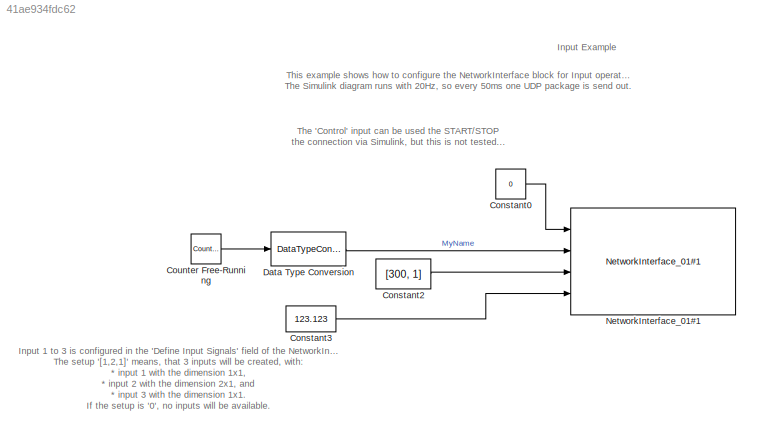
MODEL slx_41ae934fdc62
KIND model
CONFIG AbsTol = auto
CONFIG EnableMultiTasking = off
CONFIG FixedStep = 0.05
CONFIG MaxStep = auto
CONFIG MinStep = auto
CONFIG RelTol = 1e-3
CONFIG SampleTimeConstraint = Unconstrained
CONFIG Solver = FixedStepDiscrete
CONFIG SolverName = FixedStepDiscrete
CONFIG StartTime = 0.0
CONFIG StopTime = inf
BLOCK [Constant] Constant0
  OutDataTypeStr = double
  SampleTime = -1
  Value = 0
BLOCK [Constant] Constant2
  OutDataTypeStr = double
  SampleTime = -1
  Value = [300, 1]
BLOCK [Constant] Constant3
  OutDataTypeStr = double
  SampleTime = -1
  Value = 123.123
BLOCK [Reference] Counter Free-Running  REF=simulink/Sources/Counter
Free-Running
  Ports = [0, 1]
  SourceBlock = simulink/Sources/Counter\nFree-Running
  SourceType = Counter Free-Running
BLOCK [DataTypeConversion] Data Type Conversion
  RndMeth = Floor
  SaturateOnIntegerOverflow = off
BLOCK [Reference] NetworkInterface_01#1  REF=LIB_NetwokInterface/NetworkInterface_01#1
  Ports = [4]
  SourceBlock = LIB_NetwokInterface/NetworkInterface_01#1
  SourceType = NetworkInterface Block
ANNOTATION (root): Input Example
ANNOTATION (root): Input 1 to 3 is configured in the 'Define Input Signals' field of the NetworkInface configuration dialog. The setup '[1,2,1]' means, that 3 inputs will be created, with: * input 1 with the dimension 1x1, * input 2 with the dimension 2x1, and * input 3 with the dimension 1x1. If the setup is '0', no inputs will be available. Because the signal connecting the 'Counter Free-Running' block and the 'in...<+253ch>
ANNOTATION (root): The 'Control' input can be used the START/STOP the connection via Simulink, but this is not tested...
ANNOTATION (root): This example shows how to configure the NetworkInterface block for Input operation. The Simulink diagram runs with 20Hz, so every 50ms one UDP package is send out.
LINE Constant0:1 -> NetworkInterface_01#1:1
LINE Constant2:1 -> NetworkInterface_01#1:3
LINE Constant3:1 -> NetworkInterface_01#1:4
LINE Counter Free-Running:1 -> Data Type Conversion:1
LINE Data Type Conversion:1 -> NetworkInterface_01#1:2
